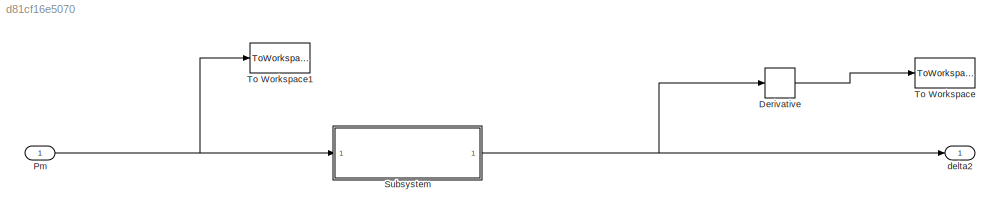
MODEL slx_d81cf16e5070
KIND model
BLOCK [Derivative] Derivative
BLOCK [Inport] Pm
  IconDisplay = Port number
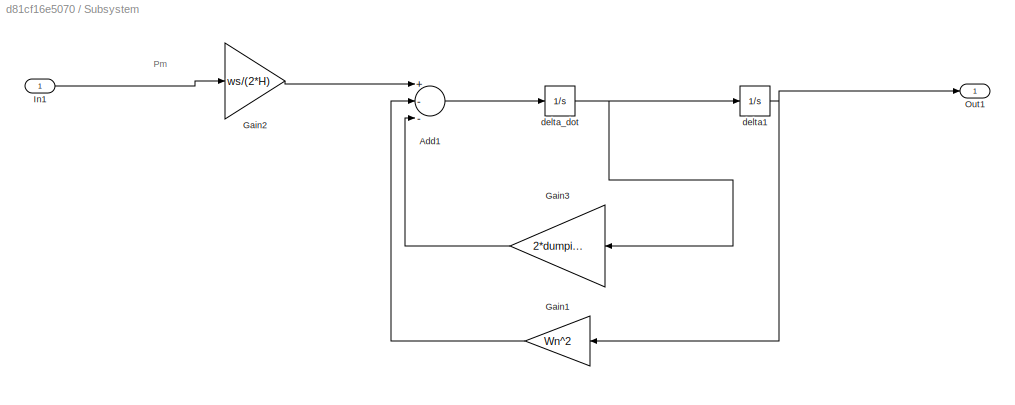
BLOCK [SubSystem] Subsystem
  Ports = [1, 1]
  RequestExecContextInheritance = off
BLOCK [Sum] Subsystem/Add1
  InputSameDT = off
  Inputs = +--
  OutDataTypeStr = Inherit: Inherit via internal rule
  Ports = [3, 1]
  SaturateOnIntegerOverflow = off
BLOCK [Gain] Subsystem/Gain1
  Gain = Wn^2
  OutDataTypeStr = Inherit: Inherit via internal rule
  ParamDataTypeStr = Inherit: Inherit via internal rule
  SaturateOnIntegerOverflow = off
BLOCK [Gain] Subsystem/Gain2
  Gain = ws/(2*H)
  OutDataTypeStr = Inherit: Inherit via internal rule
  ParamDataTypeStr = Inherit: Inherit via internal rule
  SaturateOnIntegerOverflow = off
BLOCK [Gain] Subsystem/Gain3
  Gain = 2*dumping*Wn
  OutDataTypeStr = Inherit: Inherit via internal rule
  ParamDataTypeStr = Inherit: Inherit via internal rule
  SaturateOnIntegerOverflow = off
BLOCK [Inport] Subsystem/In1
  IconDisplay = Port number
BLOCK [Outport] Subsystem/Out1
  IconDisplay = Port number
BLOCK [Integrator] Subsystem/delta1 
  Ports = [1, 1]
BLOCK [Integrator] Subsystem/delta_dot
  Ports = [1, 1]
BLOCK [ToWorkspace] To Workspace
  FixptAsFi = on
  MaxDataPoints = inf
  Ports = [1]
  SampleTime = -1
  Save2DSignal = 3-D array (concatenate along third dimension)
  SaveFormat = Structure With Time
  VariableName = frequency
BLOCK [ToWorkspace] To Workspace1
  FixptAsFi = on
  MaxDataPoints = inf
  Ports = [1]
  SampleTime = -1
  Save2DSignal = 3-D array (concatenate along third dimension)
  SaveFormat = Structure With Time
  VariableName = power
BLOCK [Outport] delta2
  IconDisplay = Port number
ANNOTATION Subsystem: Pm
LINE Derivative:1 -> To Workspace:1
NET Pm:1 -> Subsystem:1, To Workspace1:1
LINE Subsystem/Add1:1 -> Subsystem/delta_dot:1
LINE Subsystem/Gain1:1 -> Subsystem/Add1:2
LINE Subsystem/Gain2:1 -> Subsystem/Add1:1
LINE Subsystem/Gain3:1 -> Subsystem/Add1:3
LINE Subsystem/In1:1 -> Subsystem/Gain2:1
NET Subsystem/delta1 :1 -> Subsystem/Gain1:1, Subsystem/Out1:1
NET Subsystem/delta_dot:1 -> Subsystem/Gain3:1, Subsystem/delta1 :1
NET Subsystem:1 -> Derivative:1, delta2:1
note: NET lines group one-source signal fan-out (src -> all destinations, sorted); 1:1 wires keep LINE
